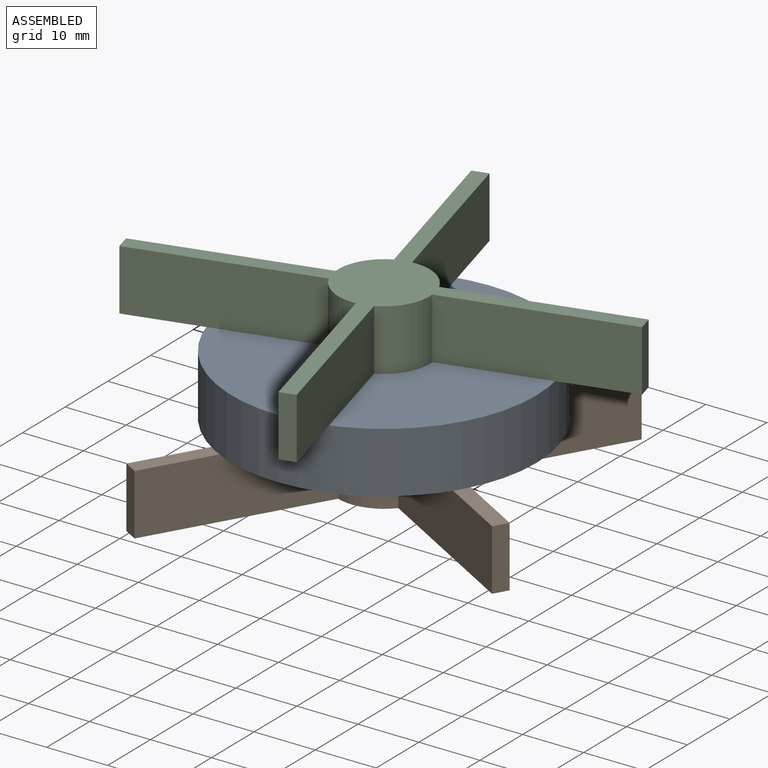
[diagram: assembled view]
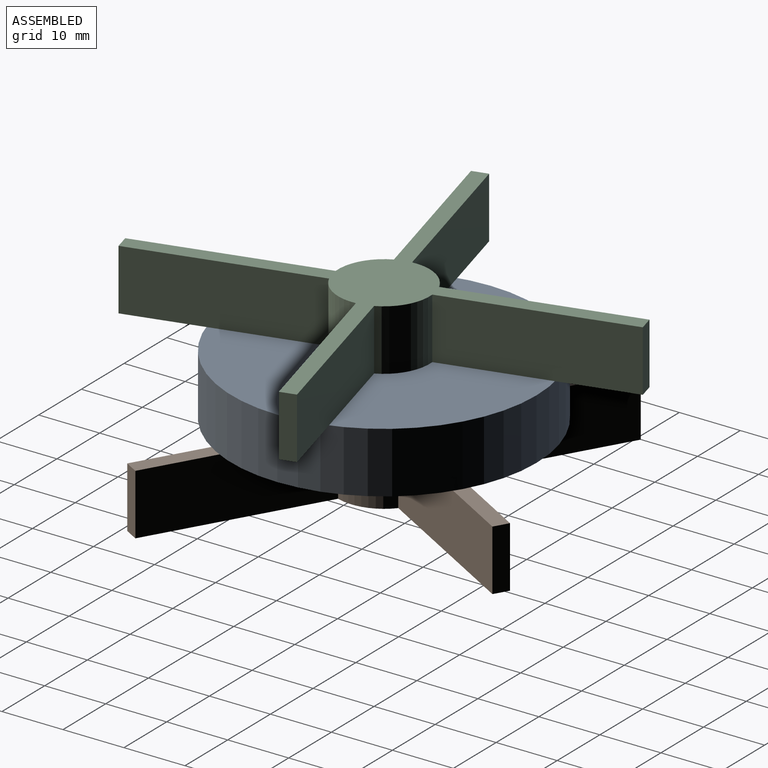
[diagram: assembled view, second angle]
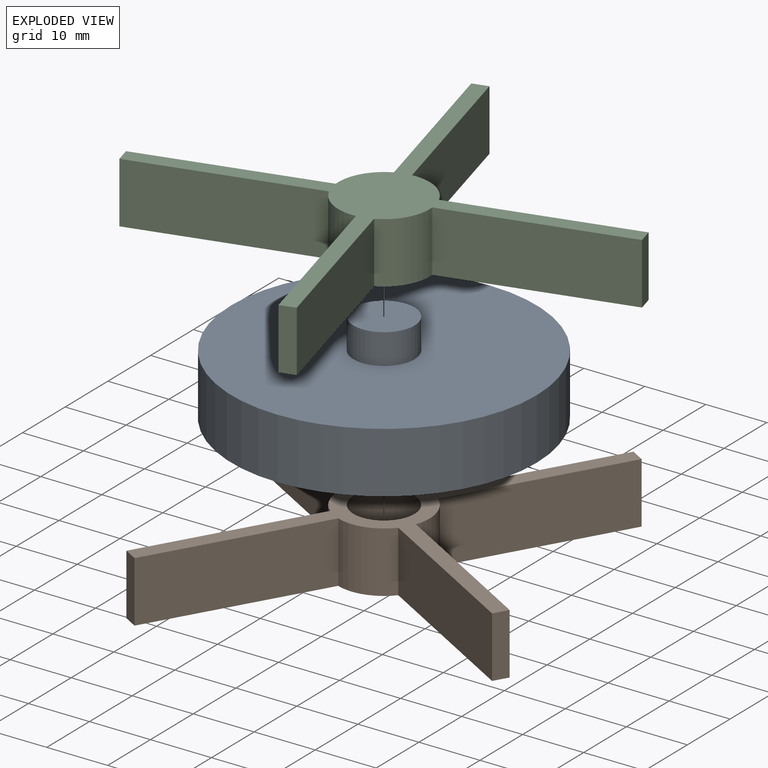
[diagram: exploded view]
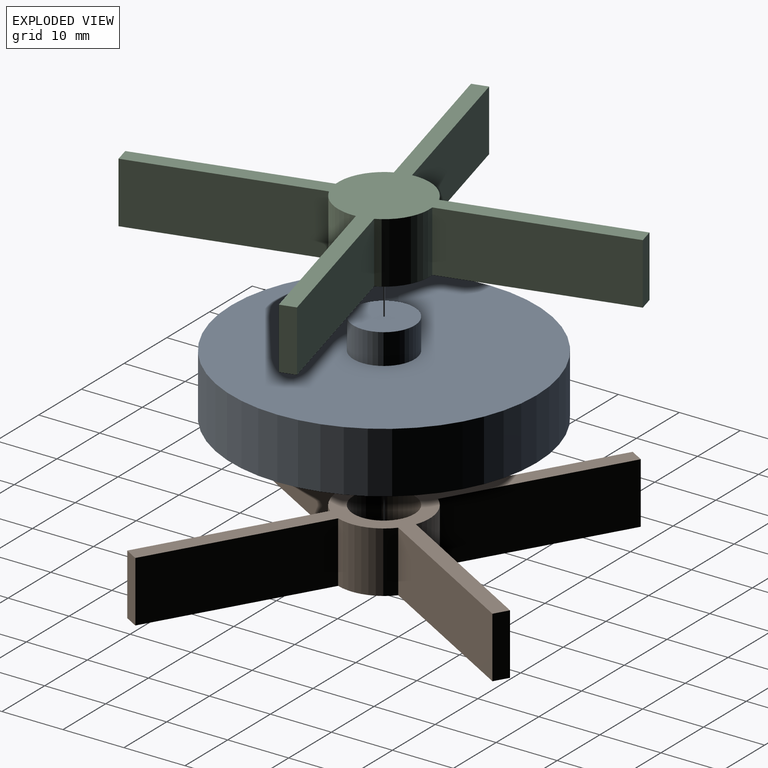
[diagram: exploded view, second angle]
ASSEMBLY  parts=3 mates=2
PART A: 7 faces, bbox 50x50x20 mm
  f0: cylinder r=25mm len=50mm, axis (0,0,-1), area 1570.8mm2, adj f1,f2
  f1: plane 50x50mm, normal (0,0,1), area 1885mm2, adj f0,f5
  f2: plane 50x50mm, normal (0,0,-1), area 1885mm2, adj f0,f4
  f3: plane 10x10mm, normal (0,0,-1), area 78.5mm2, adj f4
  f4: cylinder r=5mm len=10mm, axis (0,0,-1), area 157.1mm2, adj f2,f3
  f5: cylinder r=5mm len=10mm, axis (0,0,-1), area 157.1mm2, adj f1,f6
  f6: plane 10x10mm, normal (0,0,1), area 78.5mm2, adj f5
PART B: 20 faces, bbox 74.8x10x75 mm
  f0: plane 30.11x10mm, normal (-1,0,0), area 301.1mm2, adj f1,f15,f16,f17
  f1: cylinder r=7.5mm len=10mm, axis (0,1,0), area 91.7mm2, adj f0,f2,f16,f17
  f2: plane 30x10mm, normal (0,0,1), area 300mm2, adj f1,f3,f16,f17
  f3: plane 10x2.6mm, normal (-1,0,0), area 26mm2, adj f2,f4,f16,f17
  f4: plane 30x10mm, normal (0,0,-1), area 300mm2, adj f3,f5,f16,f17
  f5: cylinder r=7.5mm len=10mm, axis (0,1,0), area 91.7mm2, adj f4,f6,f16,f17
  f6: plane 30.11x10mm, normal (-1,0,0), area 301.1mm2, adj f5,f7,f16,f17
  f7: plane 10x2.6mm, normal (0,0,-1), area 26mm2, adj f6,f8,f16,f17
  f8: plane 30.11x10mm, normal (1,0,0), area 301.1mm2, adj f7,f9,f16,f17
  f9: cylinder r=7.5mm len=10mm, axis (0,1,0), area 91.7mm2, adj f8,f10,f16,f17
  f10: plane 30x10mm, normal (0,0,-1), area 300mm2, adj f9,f11,f16,f17
  f11: plane 10x2.6mm, normal (1,0,0), area 26mm2, adj f10,f12,f16,f17
  f12: plane 30x10mm, normal (0,0,1), area 300mm2, adj f11,f13,f16,f17
  f13: cylinder r=7.5mm len=10mm, axis (0,1,0), area 91.7mm2, adj f12,f14,f16,f17
  f14: plane 30.11x10mm, normal (1,0,0), area 301.1mm2, adj f13,f15,f16,f17
  f15: plane 10x2.6mm, normal (0,0,1), area 26mm2, adj f0,f14,f16,f17
  f16: plane 75x74.77mm, normal (0,-1,0), area 410mm2, adj f0,f1,f2,f3,f4,f5,f6,f7
  f17: plane 75x74.77mm, normal (0,1,0), area 488.5mm2, adj f0,f1,f2,f3,f4,f5,f6,f7
  f18: cylinder r=5mm len=10mm, axis (0,-1,0), area 157.1mm2, adj f16,f19
  f19: plane 10x10mm, normal (0,-1,0), area 78.5mm2, adj f18
PART C: same geometry as B
PLACE A t=(-2.79,-1.34,-7.09)mm fixed
PLACE B rot(axis=(-0.19,-0.69,0.69),158.8deg) t=(-2.79,-1.34,-17.09)mm
PLACE C rot(axis=(0.09,-0.7,-0.7),169.5deg) t=(-2.79,-1.34,12.91)mm
MATE revolute B.f1 <-> A.f0  axis (0,0,1) through (-2.79,-1.34,-12.09)mm
MATE revolute C.f1 <-> A.f0  axis (0,0,-1) through (-2.79,-1.34,7.91)mm
